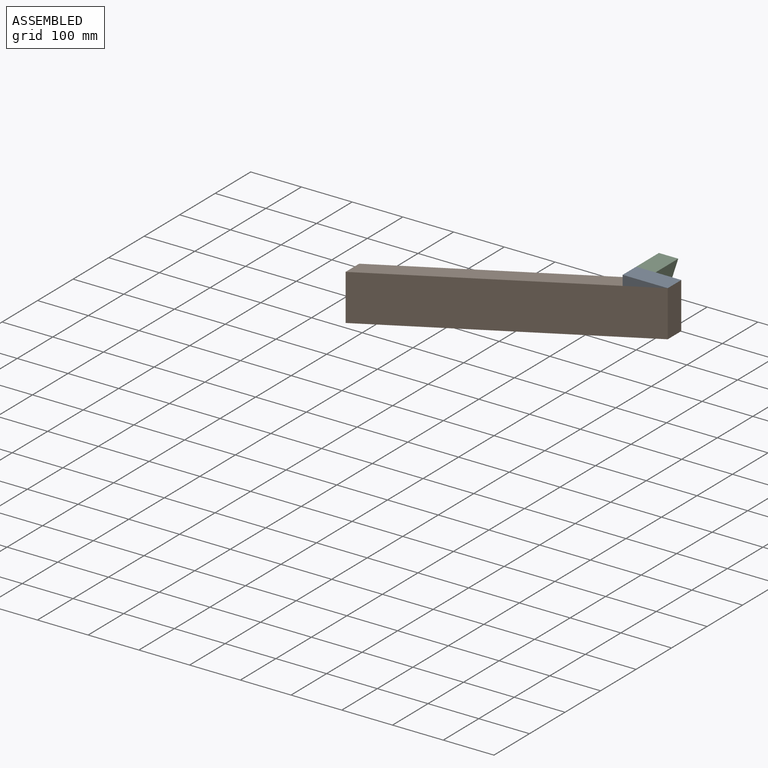
[diagram: assembled view]
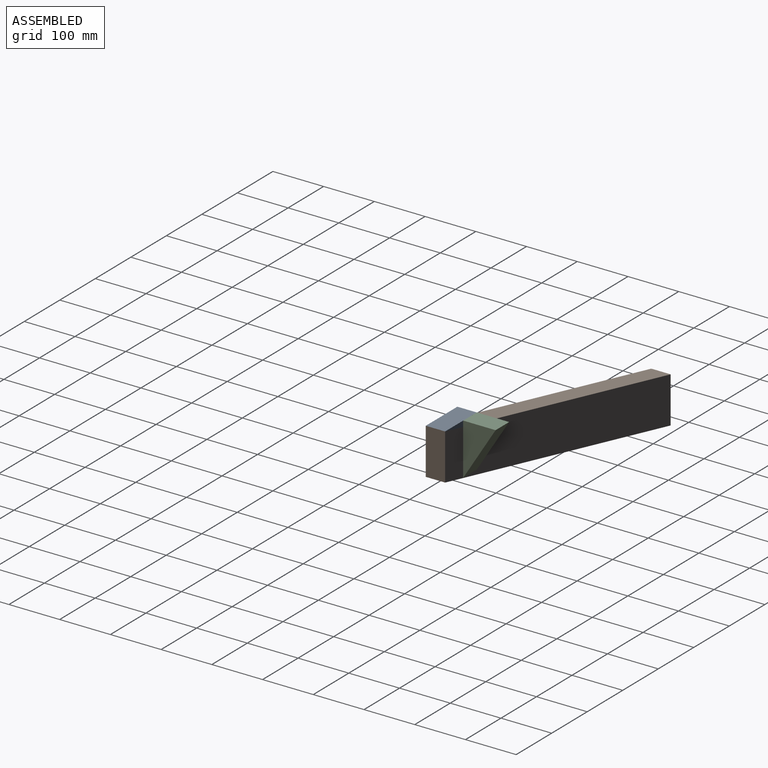
[diagram: assembled view, second angle]
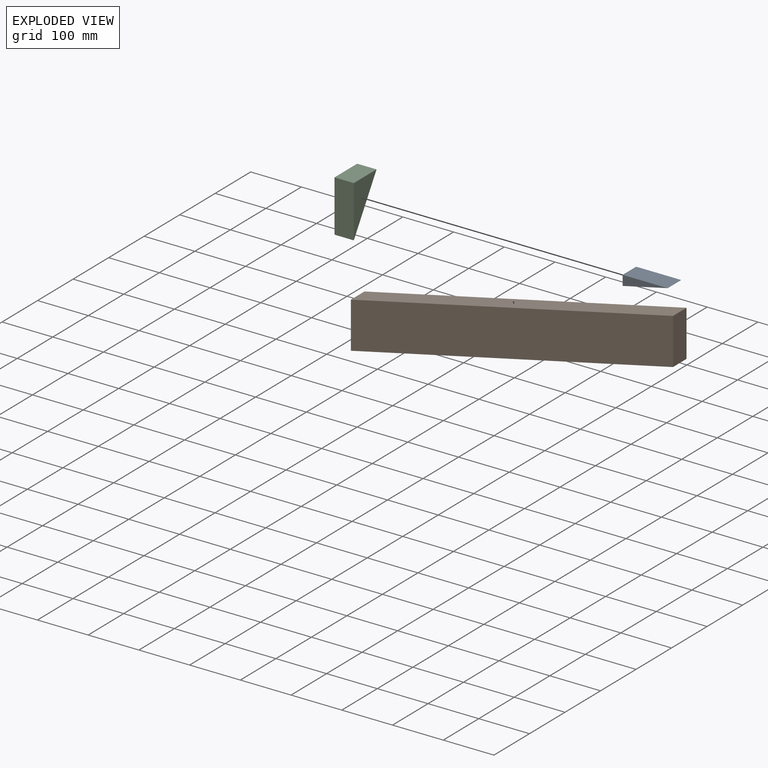
[diagram: exploded view]
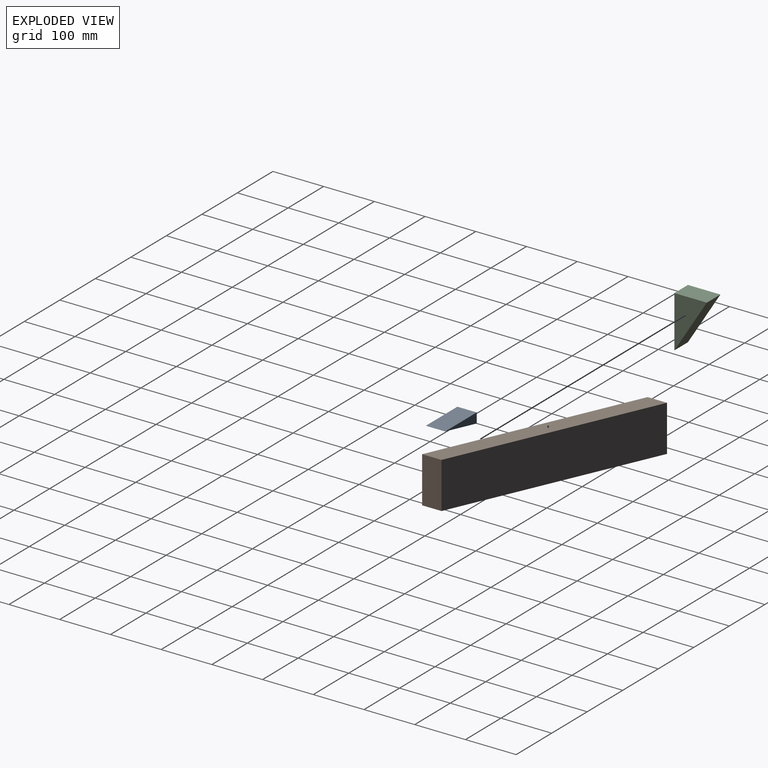
[diagram: exploded view, second angle]
ASSEMBLY  parts=3 mates=5
PART A: 5 faces, bbox 88.9x38.1x19.7 mm
  f0: plane 88.9x38.1mm, normal (0,0,1), area 3387.1mm2, adj f1,f2,f3,f4
  f1: plane 38.1x19.71mm, normal (-1,0,0), area 750.9mm2, adj f0,f2,f3,f4
  f2: plane 88.9x38.1mm, normal (0.22,0,-0.98), area 3469.3mm2, adj f0,f1,f3,f4
  f3: plane 88.9x19.71mm, normal (0,-1,0), area 876mm2, adj f0,f1,f2
  f4: plane 88.9x19.71mm, normal (0,1,0), area 876mm2, adj f0,f1,f2
PART B: 6 faces, bbox 88.9x38.1x670.1 mm
  f0: plane 650.42x38.1mm, normal (1,0,0), area 24780.9mm2, adj f1,f3,f4,f5
  f1: plane 88.9x38.1mm, normal (-0.22,0,0.98), area 3469.3mm2, adj f0,f2,f4,f5
  f2: plane 650.42x38.1mm, normal (-1,0,0), area 24780.9mm2, adj f1,f3,f4,f5
  f3: plane 88.9x38.1mm, normal (0.22,0,-0.98), area 3469.3mm2, adj f0,f2,f4,f5
  f4: plane 670.13x88.9mm, normal (0,-1,0), area 57822.1mm2, adj f0,f1,f2,f3
  f5: plane 670.13x88.9mm, normal (0,1,0), area 57822.1mm2, adj f0,f1,f2,f3
PART C: 5 faces, bbox 64x38.1x102.1 mm
  f0: plane 102.05x38.1mm, normal (-1,0,0), area 3888.2mm2, adj f1,f2,f3,f4
  f1: plane 63.95x38.1mm, normal (0,0,-1), area 2436.6mm2, adj f0,f2,f3,f4
  f2: plane 102.05x63.95mm, normal (0.85,0,0.53), area 4588.6mm2, adj f0,f1,f3,f4
  f3: plane 102.05x63.95mm, normal (0,1,0), area 3263.3mm2, adj f0,f1,f2
  f4: plane 102.05x63.95mm, normal (0,-1,0), area 3263.3mm2, adj f0,f1,f2
PLACE A rot(axis=(-0.46,0.34,0.82),0deg) t=(-315.49,153.19,-301.47)mm
PLACE B rot(axis=(0.63,0,0.78),180deg) t=(-443.66,115.09,-198.6)mm
PLACE C rot(axis=(-0.71,-0.71,0),180deg) t=(-127.04,153.19,175.39)mm
MATE planar A.f2 <-> B.f0  axis (0.22,0,-0.98) through (-82.59,134.14,165.53)mm
MATE planar C.f4 <-> A.f1  axis (-1,0,0) through (-127.04,185.16,175.39)mm
MATE planar B.f4 <-> A.f4  axis (0,1,0) through (-355.64,153.19,59.47)mm
MATE planar A.f0 <-> C.f1  axis (0,0,1) through (-82.59,115.09,175.39)mm
MATE planar A.f4 <-> C.f0  axis (0,1,0) through (-97.4,153.19,168.82)mm
